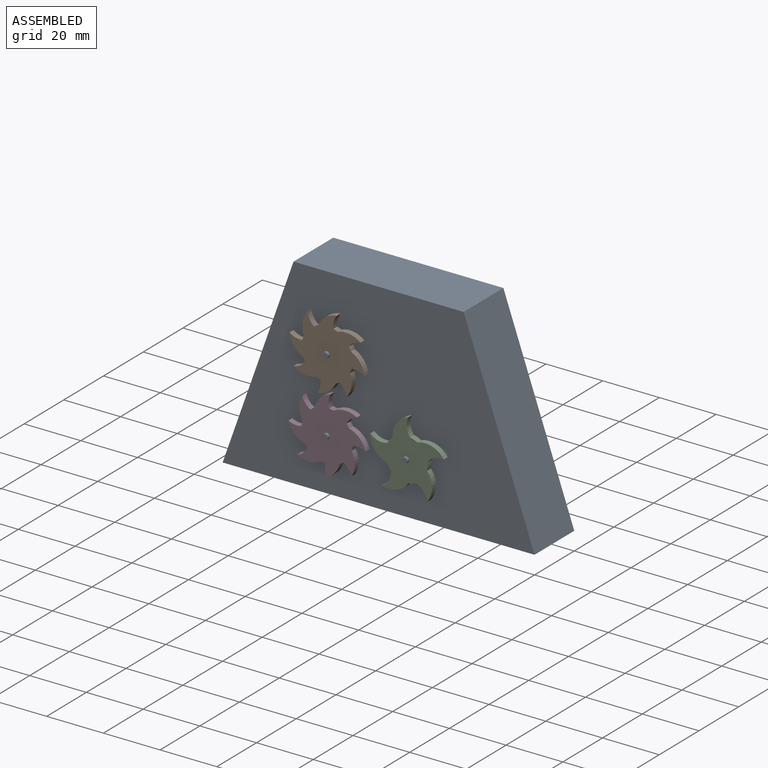
[diagram: assembled view]
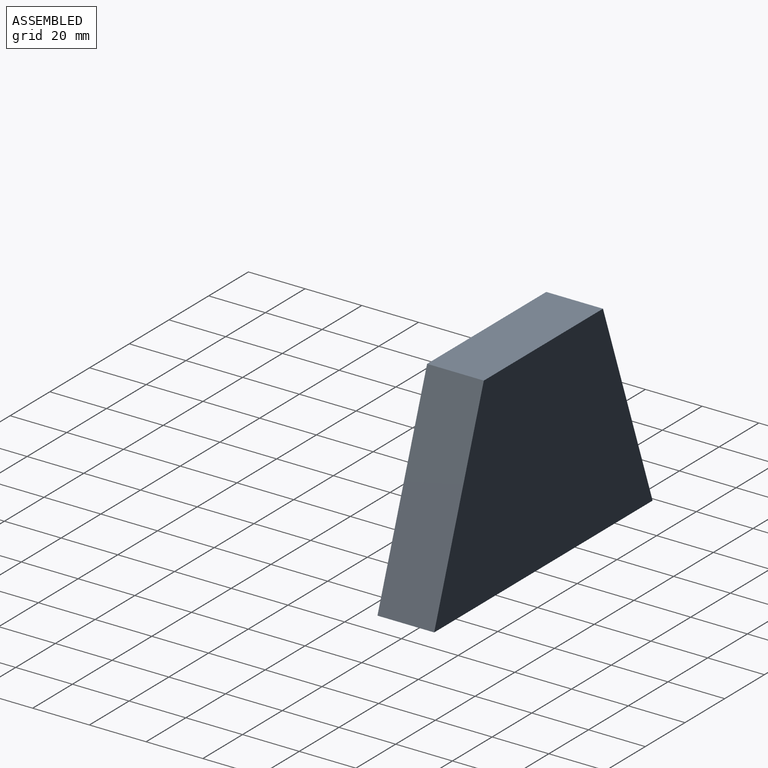
[diagram: assembled view, second angle]
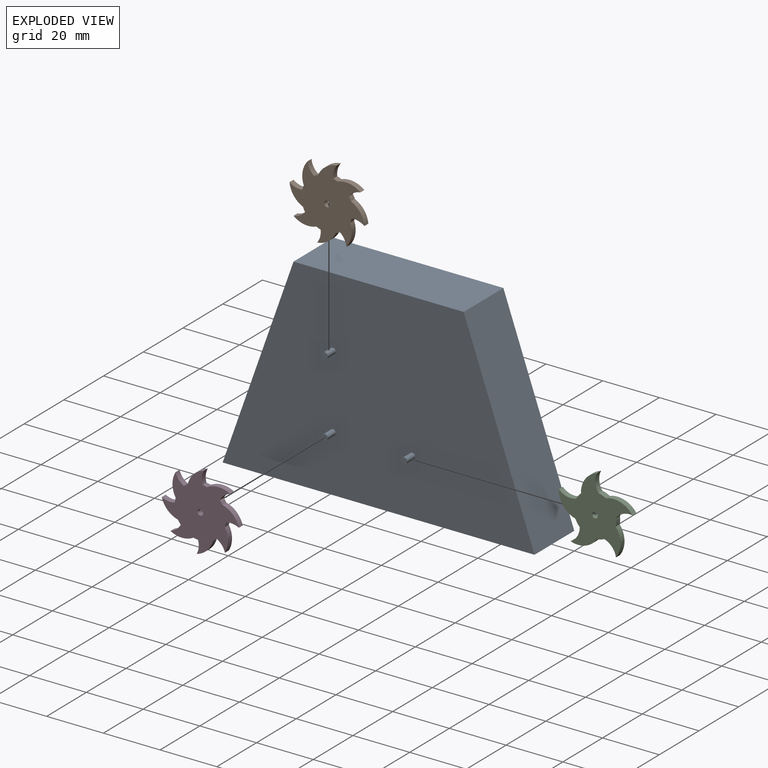
[diagram: exploded view]
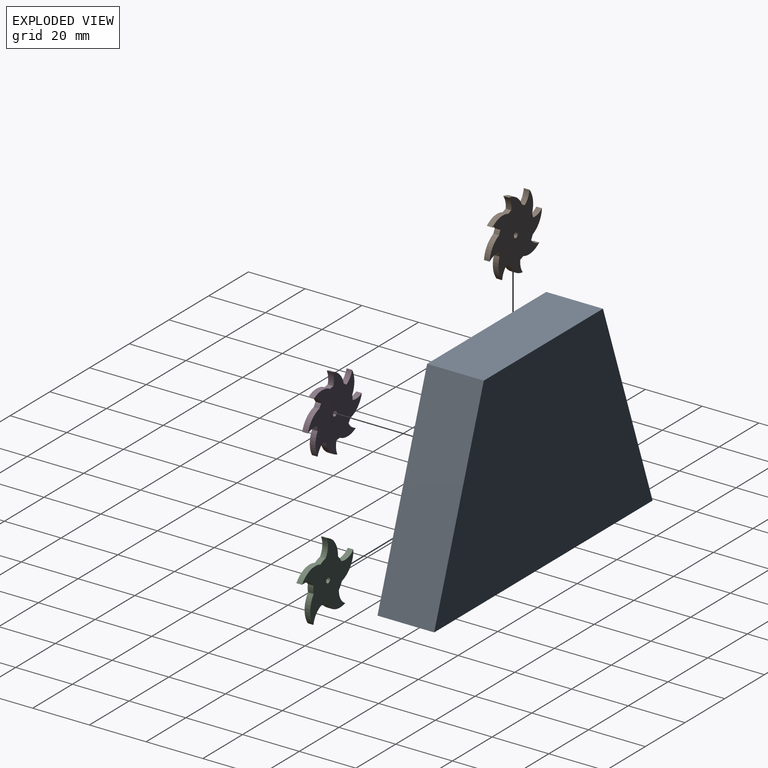
[diagram: exploded view, second angle]
ASSEMBLY  parts=4 mates=3
PART A: 12 faces, bbox 110x24x70.7 mm
  f0: plane 110x20mm, normal (0,0,-1), area 2200mm2, adj f1,f3,f4,f5
  f1: plane 70.71x25mm, normal (0.94,0,0.33), area 1500mm2, adj f0,f2,f4,f5
  f2: plane 60x20mm, normal (0,0,1), area 1200mm2, adj f1,f3,f4,f5
  f3: plane 70.71x25mm, normal (-0.94,0,0.33), area 1500mm2, adj f0,f2,f4,f5
  f4: plane 110x70.71mm, normal (0,-1,0), area 6001mm2, adj f0,f1,f2,f3,f6,f8,f10
  f5: plane 110x70.71mm, normal (0,1,0), area 6010.4mm2, adj f0,f1,f2,f3
  f6: cylinder r=1mm len=4mm, axis (0,1,0), area 25.1mm2, adj f4,f7
  f7: plane 2x2mm, normal (0,-1,0), area 3.1mm2, adj f6
  f8: cylinder r=1mm len=4mm, axis (0,1,0), area 25.1mm2, adj f4,f9
  f9: plane 2x2mm, normal (0,-1,0), area 3.1mm2, adj f8
  f10: cylinder r=1mm len=4mm, axis (0,1,0), area 25.1mm2, adj f4,f11
  f11: plane 2x2mm, normal (0,-1,0), area 3.1mm2, adj f10
PART B: 27 faces, bbox 27.3x27.3x2 mm
  f0: cylinder r=8mm len=8.13mm, axis (0,0,-1), area 17.1mm2, adj f1,f23,f24,f25
  f1: cylinder r=9mm len=2mm, axis (0,0,-1), area 3.2mm2, adj f0,f2,f24,f25
  f2: cylinder r=6mm len=4.64mm, axis (0,0,-1), area 9.5mm2, adj f1,f3,f24,f25
  f3: cylinder r=8mm len=6.05mm, axis (0,0,-1), area 17.1mm2, adj f2,f4,f24,f25
  f4: cylinder r=9mm len=2mm, axis (0,0,-1), area 3.2mm2, adj f3,f5,f24,f25
  f5: cylinder r=6mm len=3.47mm, axis (0,0,-1), area 9.5mm2, adj f4,f6,f24,f25
  f6: cylinder r=8mm len=8.13mm, axis (0,0,-1), area 17.1mm2, adj f5,f7,f24,f25
  f7: cylinder r=9mm len=2mm, axis (0,0,-1), area 3.2mm2, adj f6,f8,f24,f25
  f8: cylinder r=6mm len=4.64mm, axis (0,0,-1), area 9.5mm2, adj f7,f9,f24,f25
  f9: cylinder r=8mm len=6.05mm, axis (0,0,-1), area 17.1mm2, adj f8,f10,f24,f25
  f10: cylinder r=9mm len=2mm, axis (0,0,-1), area 3.2mm2, adj f9,f11,f24,f25
  f11: cylinder r=6mm len=3.47mm, axis (0,0,-1), area 9.5mm2, adj f10,f12,f24,f25
  f12: cylinder r=8mm len=8.13mm, axis (0,0,-1), area 17.1mm2, adj f11,f13,f24,f25
  f13: cylinder r=9mm len=2mm, axis (0,0,-1), area 3.2mm2, adj f12,f14,f24,f25
  f14: cylinder r=6mm len=4.64mm, axis (0,0,-1), area 9.5mm2, adj f13,f15,f24,f25
  f15: cylinder r=8mm len=6.05mm, axis (0,0,-1), area 17.1mm2, adj f14,f16,f24,f25
  f16: cylinder r=9mm len=2mm, axis (0,0,-1), area 3.2mm2, adj f15,f17,f24,f25
  f17: cylinder r=6mm len=3.47mm, axis (0,0,-1), area 9.5mm2, adj f16,f18,f24,f25
  f18: cylinder r=8mm len=8.13mm, axis (0,0,-1), area 17.1mm2, adj f17,f19,f24,f25
  f19: cylinder r=9mm len=2mm, axis (0,0,-1), area 3.2mm2, adj f18,f20,f24,f25
  f20: cylinder r=6mm len=4.64mm, axis (0,0,-1), area 9.5mm2, adj f19,f21,f24,f25
  f21: cylinder r=8mm len=6.05mm, axis (0,0,-1), area 17.1mm2, adj f20,f22,f24,f25
  f22: cylinder r=9mm len=2mm, axis (0,0,-1), area 3.2mm2, adj f21,f23,f24,f25
  f23: cylinder r=6mm len=3.47mm, axis (0,0,-1), area 9.5mm2, adj f0,f22,f24,f25
  f24: plane 27.27x27.27mm, normal (0,0,1), area 371.6mm2, adj f0,f1,f2,f3,f4,f5,f6,f7
  f25: plane 27.27x27.27mm, normal (0,0,-1), area 371.6mm2, adj f0,f1,f2,f3,f4,f5,f6,f7
  f26: cylinder r=1mm len=2mm, axis (0,0,1), area 12.6mm2, adj f24,f25
PART C: 18 faces, bbox 25.9x25x2 mm
  f0: cylinder r=8mm len=9.37mm, axis (0,0,-1), area 21.1mm2, adj f1,f14,f15,f16
  f1: cylinder r=7.5mm len=2.59mm, axis (0,0,-1), area 5.5mm2, adj f0,f2,f15,f16
  f2: cylinder r=6mm len=6.23mm, axis (0,0,-1), area 13.2mm2, adj f1,f3,f15,f16
  f3: cylinder r=8mm len=8.04mm, axis (0,0,-1), area 21.1mm2, adj f2,f4,f15,f16
  f4: cylinder r=7.5mm len=2.17mm, axis (0,0,-1), area 5.5mm2, adj f3,f5,f15,f16
  f5: cylinder r=6mm len=6.11mm, axis (0,0,-1), area 13.2mm2, adj f4,f6,f15,f16
  f6: cylinder r=8mm len=7.81mm, axis (0,0,-1), area 21.1mm2, adj f5,f7,f15,f16
  f7: cylinder r=7.5mm len=2.27mm, axis (0,0,-1), area 5.5mm2, adj f6,f8,f15,f16
  f8: cylinder r=6mm len=5.39mm, axis (0,0,-1), area 13.2mm2, adj f7,f9,f15,f16
  f9: cylinder r=8mm len=9.25mm, axis (0,0,-1), area 21.1mm2, adj f8,f10,f15,f16
  f10: cylinder r=7.5mm len=2.64mm, axis (0,0,-1), area 5.5mm2, adj f9,f11,f15,f16
  f11: cylinder r=6mm len=4.7mm, axis (0,0,-1), area 13.2mm2, adj f10,f12,f15,f16
  f12: cylinder r=8mm len=9.79mm, axis (0,0,-1), area 21.1mm2, adj f11,f13,f15,f16
  f13: cylinder r=7.5mm len=2.75mm, axis (0,0,-1), area 5.5mm2, adj f12,f14,f15,f16
  f14: cylinder r=6mm len=5.74mm, axis (0,0,-1), area 13.2mm2, adj f0,f13,f15,f16
  f15: plane 25.93x25.02mm, normal (0,0,1), area 294.1mm2, adj f0,f1,f2,f3,f4,f5,f6,f7
  f16: plane 25.93x25.02mm, normal (0,0,-1), area 294.1mm2, adj f0,f1,f2,f3,f4,f5,f6,f7
  f17: cylinder r=1mm len=2mm, axis (0,0,1), area 12.6mm2, adj f15,f16
PART D: same geometry as B
PLACE A t=(-0.42,7.78,-3.05)mm fixed
PLACE B rot(axis=(0.36,-0.66,0.66),140.4deg) t=(-16.53,-13.22,4.68)mm
PLACE C rot(axis=(0.7,-0.5,0.5),109.9deg) t=(11.47,-13.22,-21.32)mm
PLACE D rot(axis=(0.26,0.68,-0.68),150.5deg) t=(-16.53,-13.22,-21.32)mm
MATE revolute A.f6 <-> B.f1  axis (0,1,0) through (-16.53,-14.22,4.68)mm
MATE revolute A.f8 <-> D.f1  axis (0,1,0) through (-16.53,-14.22,-21.32)mm
MATE revolute A.f10 <-> C.f1  axis (0,1,0) through (11.47,-14.22,-21.32)mm
